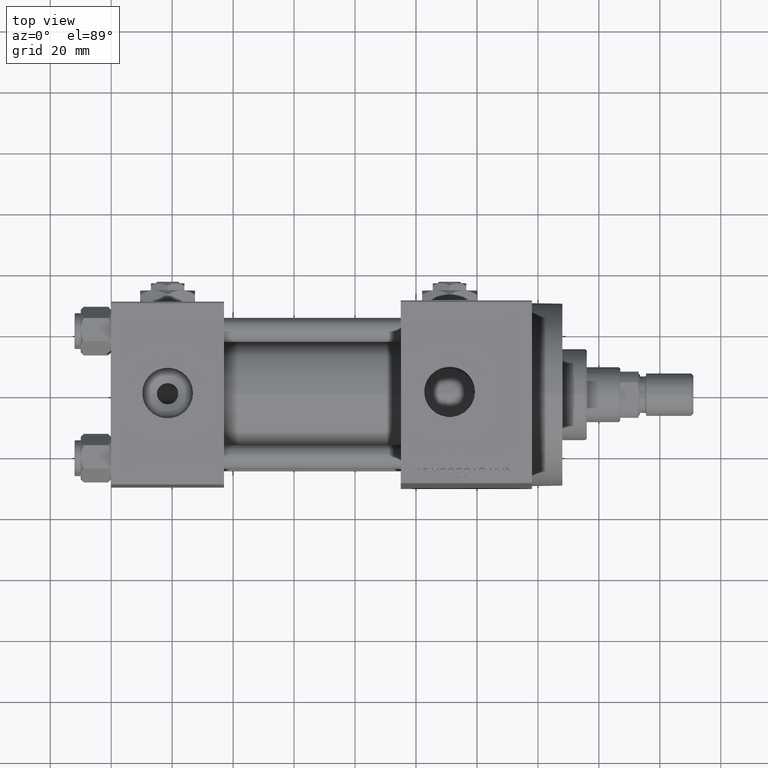
[diagram: clean part render]
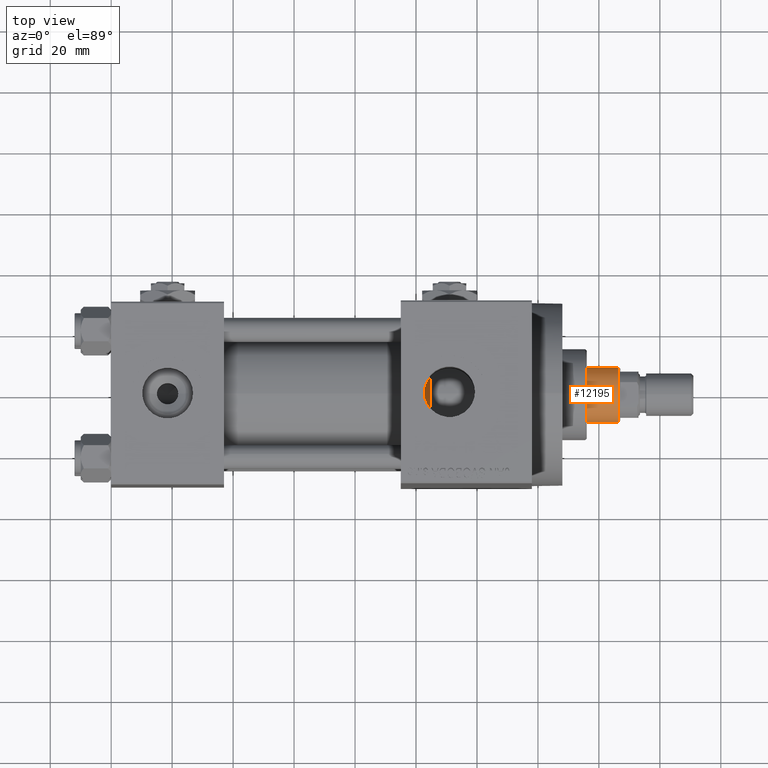
[diagram: same view with one face highlighted and labeled with its STEP entity id]
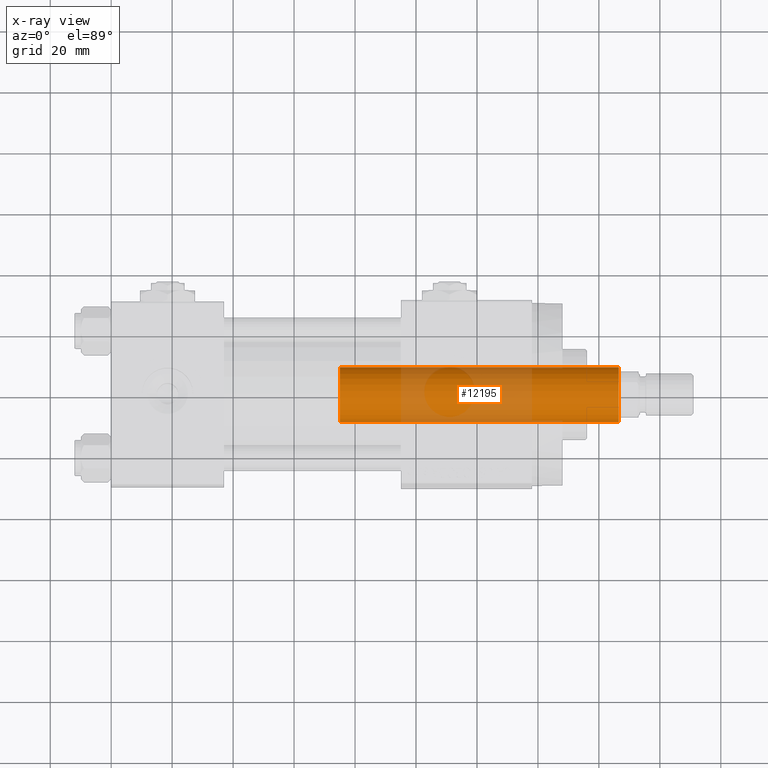
[diagram: x-ray of the same camera — body ghosted, the highlighted face saturated]
A machine part, top view. The second image highlights one B-rep face of the part: STEP entity #12195.
The next image is the same camera in x-ray: the body ghosted, the highlighted face saturated — about 35% of this face is hidden behind the body in this view.
In plain terms, the highlighted cylindrical surface (edge-blend (fillet) strip) has radius 9 mm, axis along (-1, 0, 0).
Its self-contained STEP definition (entity closure, byte-faithful):
#504 = DIRECTION ( 'NONE',  ( 0.000000000000000000, 0.000000000000000000, 1.000000000000000000 ) ) ;
#2965 = EDGE_CURVE ( 'NONE', #31691, #9929, #19140, .T. ) ;
#3059 = EDGE_CURVE ( 'NONE', #12634, #9929, #24492, .T. ) ;
#3520 = DIRECTION ( 'NONE',  ( -1.000000000000000000, 0.000000000000000000, 0.000000000000000000 ) ) ;
#3786 = CARTESIAN_POINT ( 'NONE',  ( 0.000000000000000000, 0.000000000000000000, 130.0000000000000000 ) ) ;
#3921 = AXIS2_PLACEMENT_3D ( 'NONE', #3786, #45803, #3520 ) ;
#6073 = EDGE_CURVE ( 'NONE', #31691, #32282, #45478, .T. ) ;
#8519 = CARTESIAN_POINT ( 'NONE',  ( -9.000000000000000000, 0.000000000000000000, 38.00000000000000000 ) ) ;
#9929 = VERTEX_POINT ( 'NONE', #48613 ) ;
#10489 = ORIENTED_EDGE ( 'NONE', *, *, #3059, .T. ) ;
#12195 = ADVANCED_FACE ( 'NONE', ( #21503 ), #30482, .T. ) ;
#12634 = VERTEX_POINT ( 'NONE', #8519 ) ;
#13217 = EDGE_LOOP ( 'NONE', ( #14753, #33073, #39688, #10489 ) ) ;
#13710 = LINE ( 'NONE', #28827, #15514 ) ;
#14753 = ORIENTED_EDGE ( 'NONE', *, *, #2965, .F. ) ;
#15514 = VECTOR ( 'NONE', #21517, 1000.000000000000000 ) ;
#18073 = CARTESIAN_POINT ( 'NONE',  ( 9.000000000000000000, 1.102182119232617714E-15, 129.5000000000000000 ) ) ;
#18379 = DIRECTION ( 'NONE',  ( -0.000000000000000000, -0.000000000000000000, -1.000000000000000000 ) ) ;
#19140 = LINE ( 'NONE', #48817, #23711 ) ;
#21503 = FACE_OUTER_BOUND ( 'NONE', #13217, .T. ) ;
#21517 = DIRECTION ( 'NONE',  ( -0.000000000000000000, -0.000000000000000000, -1.000000000000000000 ) ) ;
#23711 = VECTOR ( 'NONE', #18379, 1000.000000000000000 ) ;
#23820 = AXIS2_PLACEMENT_3D ( 'NONE', #41926, #25610, #25857 ) ;
#24492 = CIRCLE ( 'NONE', #25310, 9.000000000000000000 ) ;
#25244 = EDGE_CURVE ( 'NONE', #32282, #12634, #13710, .T. ) ;
#25310 = AXIS2_PLACEMENT_3D ( 'NONE', #45549, #504, #43276 ) ;
#25610 = DIRECTION ( 'NONE',  ( 0.000000000000000000, 0.000000000000000000, -1.000000000000000000 ) ) ;
#25857 = DIRECTION ( 'NONE',  ( 1.000000000000000000, 0.000000000000000000, 0.000000000000000000 ) ) ;
#28827 = CARTESIAN_POINT ( 'NONE',  ( -9.000000000000000000, 0.000000000000000000, 130.0000000000000000 ) ) ;
#30482 = CYLINDRICAL_SURFACE ( 'NONE', #3921, 9.000000000000000000 ) ;
#31691 = VERTEX_POINT ( 'NONE', #18073 ) ;
#32282 = VERTEX_POINT ( 'NONE', #37524 ) ;
#33073 = ORIENTED_EDGE ( 'NONE', *, *, #6073, .T. ) ;
#37524 = CARTESIAN_POINT ( 'NONE',  ( -9.000000000000000000, 0.000000000000000000, 129.5000000000000000 ) ) ;
#39688 = ORIENTED_EDGE ( 'NONE', *, *, #25244, .T. ) ;
#41926 = CARTESIAN_POINT ( 'NONE',  ( 0.000000000000000000, 0.000000000000000000, 129.5000000000000000 ) ) ;
#43276 = DIRECTION ( 'NONE',  ( 1.000000000000000000, 0.000000000000000000, 0.000000000000000000 ) ) ;
#45478 = CIRCLE ( 'NONE', #23820, 9.000000000000000000 ) ;
#45549 = CARTESIAN_POINT ( 'NONE',  ( 0.000000000000000000, 0.000000000000000000, 38.00000000000000000 ) ) ;
#45803 = DIRECTION ( 'NONE',  ( -0.000000000000000000, -0.000000000000000000, -1.000000000000000000 ) ) ;
#48613 = CARTESIAN_POINT ( 'NONE',  ( 9.000000000000000000, 1.102182119232617714E-15, 38.00000000000000000 ) ) ;
#48817 = CARTESIAN_POINT ( 'NONE',  ( 9.000000000000000000, 1.102182119232617714E-15, 130.0000000000000000 ) ) ;